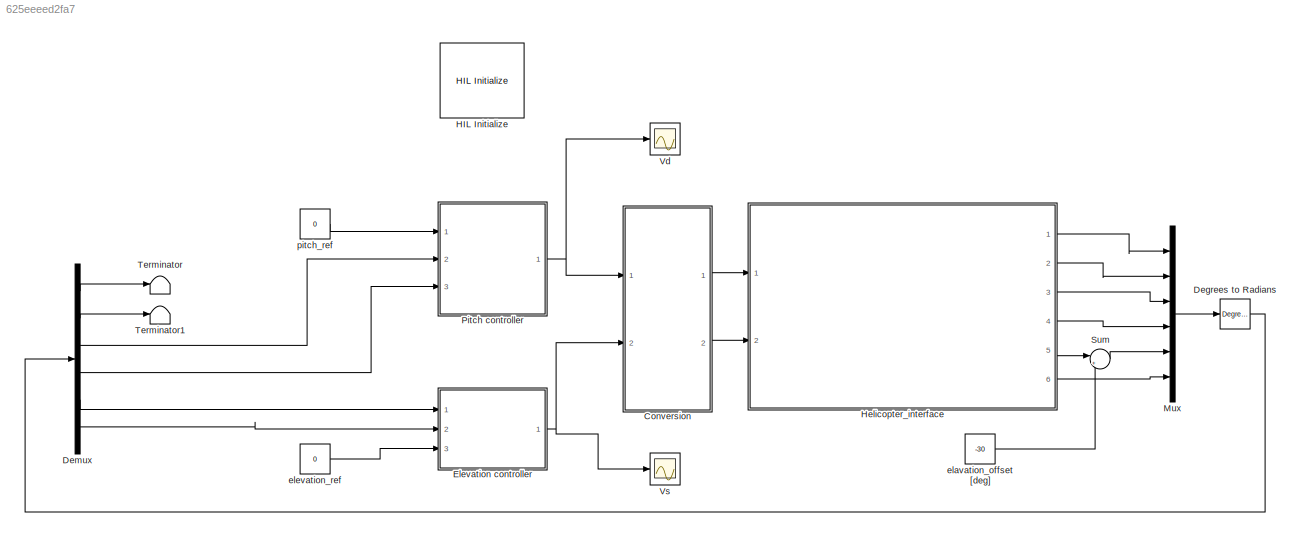
MODEL slx_625eeeed2fa7
KIND model
CONFIG PostLoadFcn = qc_set_target_type(getConfigSet(bdroot, 'QUARC Default Target Configuration'));
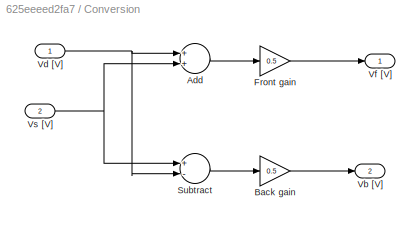
BLOCK [SubSystem] Conversion
  Ports = [2, 2]
  RequestExecContextInheritance = off
BLOCK [Sum] Conversion/Add
  InputSameDT = off
  OutDataTypeStr = Inherit: Inherit via internal rule
  Ports = [2, 1]
  SaturateOnIntegerOverflow = off
BLOCK [Gain] Conversion/Back gain
  Gain = 0.5
  OutDataTypeStr = Inherit: Inherit via internal rule
  ParamDataTypeStr = Inherit: Inherit via internal rule
  SaturateOnIntegerOverflow = off
BLOCK [Gain] Conversion/Front gain
  Gain = 0.5
  OutDataTypeStr = Inherit: Inherit via internal rule
  ParamDataTypeStr = Inherit: Inherit via internal rule
  SaturateOnIntegerOverflow = off
BLOCK [Sum] Conversion/Subtract
  InputSameDT = off
  Inputs = +-
  OutDataTypeStr = Inherit: Inherit via internal rule
  Ports = [2, 1]
  SaturateOnIntegerOverflow = off
BLOCK [Outport] Conversion/Vb [V]
  IconDisplay = Port number
  Port = 2
BLOCK [Inport] Conversion/Vd [V]
  IconDisplay = Port number
BLOCK [Outport] Conversion/Vf [V]
  IconDisplay = Port number
BLOCK [Inport] Conversion/Vs [V]
  IconDisplay = Port number
  Port = 2
BLOCK [Reference] Degrees to Radians  REF=simulink_extras/Transformations/Degrees to
Radians
  Ports = [1, 1]
  SourceBlock = simulink_extras/Transformations/Degrees to\nRadians
  SourceType = DegreesToRadians
BLOCK [Demux] Demux
  DisplayOption = bar
  Outputs = 6
  Ports = [1, 6]
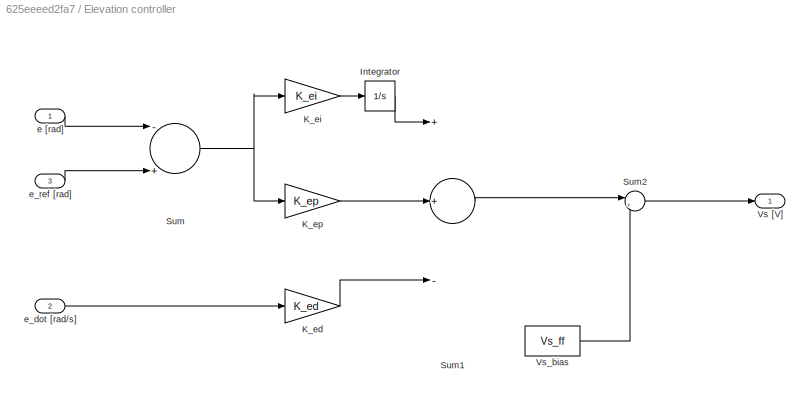
BLOCK [SubSystem] Elevation controller
  Ports = [3, 1]
  RequestExecContextInheritance = off
BLOCK [Integrator] Elevation controller/Integrator
  LimitOutput = on
  Ports = [1, 1]
BLOCK [Gain] Elevation controller/K_ed
  Gain = K_ed
BLOCK [Gain] Elevation controller/K_ei
  Gain = K_ei
BLOCK [Gain] Elevation controller/K_ep
  Gain = K_ep
BLOCK [Sum] Elevation controller/Sum
  Inputs = -+
  Ports = [2, 1]
BLOCK [Sum] Elevation controller/Sum1
  Inputs = ++-
  Ports = [3, 1]
BLOCK [Sum] Elevation controller/Sum2
  IconShape = round
  InputSameDT = off
  Inputs = |++
  OutDataTypeStr = Inherit: Inherit via internal rule
  Ports = [2, 1]
  SaturateOnIntegerOverflow = off
BLOCK [Outport] Elevation controller/Vs [V]
  IconDisplay = Port number
  InitialOutput = 0
BLOCK [Constant] Elevation controller/Vs_bias
  Value = Vs_ff
BLOCK [Inport] Elevation controller/e [rad]
  IconDisplay = Port number
BLOCK [Inport] Elevation controller/e_dot [rad//s]
  IconDisplay = Port number
  Port = 2
BLOCK [Inport] Elevation controller/e_ref [rad]
  IconDisplay = Port number
  Port = 3
BLOCK [Reference] HIL Initialize  REF=quarc_library/Data Acquisition/Generic/Configuration/HIL Initialize
  AttributesFormatString = %<object_name> (%<board_type>-%<board_number>)
  Ports = []
  Priority = -99
  SourceBlock = quarc_library/Data Acquisition/Generic/Configuration/HIL Initialize
  SourceType = HIL Initialize
  UserDataPersistent = on
  active = off
  analog_input_channels = [0:7]
  analog_input_maximums = 10
  analog_input_minimums = -10
  analog_output_channels = [0:7]
  analog_output_maximums = 10
  analog_output_minimums = -10
  board_number = 0
  board_options = update_rate=normal;decimation=1
  board_type = q8_usb
  clock_modes = []
  digital_input_channels = []
  digital_output_channels = []
  digital_output_configuration = []
  encoder_channels = [0:7]
  encoder_filter_frequency = []
  exclusive = off
  final_analog_outputs = [0]
  final_digital_outputs = [1]
  final_other_outputs = []
  final_pwm_outputs = [0]
  hardware_clocks = [0:2]
  initial_analog_outputs = [0]
  initial_clock_frequencies = []
  initial_digital_outputs = [1]
  initial_encoder_counts = [0]
  initial_other_outputs = []
  initial_pwm_outputs = [0]
  object_name = HIL-1
  other_output_channels = []
  pwm_alignment = [0]
  pwm_channels = [0:7]
  pwm_configuration = [0]
  pwm_frequency = 99.532799999999995e6/4095
  pwm_leading_deadband = [0]
  pwm_modes = 0
  pwm_polarity = [1]
  pwm_trailing_deadband = [0]
  quadrature = [4]
  set_analog_input_params_at_start = on
  set_analog_input_params_at_switch_in = off
  set_analog_output_params_at_start = on
  set_analog_output_params_at_switch_in = off
  set_analog_outputs_at_start = on
  set_analog_outputs_at_switch_in = off
  set_analog_outputs_at_switch_out = off
  set_analog_outputs_at_terminate = on
  set_analog_outputs_on_watchdog = off
  set_clock_frequencies_at_start = off
  set_clock_frequencies_at_switch_in = off
  set_clock_params_at_start = off
  set_clock_params_at_switch_in = off
  set_digital_output_params_at_start = off
  set_digital_output_params_at_switch_in = off
  set_digital_outputs_at_start = on
  set_digital_outputs_at_switch_in = off
  set_digital_outputs_at_switch_out = off
  set_digital_outputs_at_terminate = on
  set_digital_outputs_on_watchdog = off
  set_encoder_counts_at_start = on
  set_encoder_counts_at_switch_in = off
  set_encoder_params_at_start = on
  set_encoder_params_at_switch_in = off
  set_other_outputs_at_start = off
  set_other_outputs_at_switch_in = off
  set_other_outputs_at_switch_out = off
  set_other_outputs_at_terminate = off
  set_other_outputs_on_watchdog = off
  set_pwm_outputs_at_start = on
  set_pwm_outputs_at_switch_in = off
  set_pwm_outputs_at_switch_out = off
  set_pwm_outputs_at_terminate = on
  set_pwm_outputs_on_watchdog = off
  set_pwm_params_at_start = on
  set_pwm_params_at_switch_in = off
  watchdog_analog_outputs = 0
  watchdog_digital_outputs = [1]
  watchdog_other_outputs = []
  watchdog_pwm_outputs = [0]
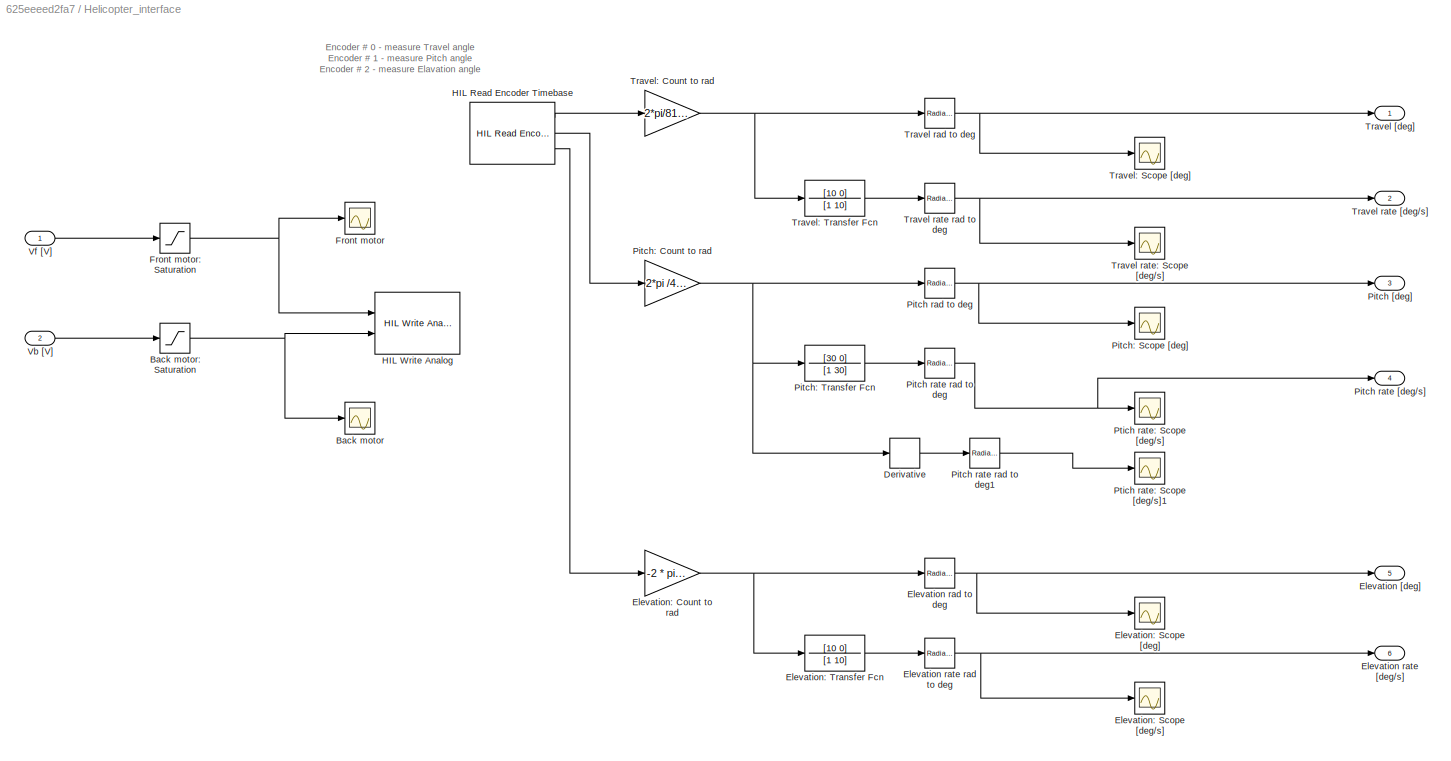
BLOCK [SubSystem] Helicopter_interface
  Ports = [2, 6]
  RequestExecContextInheritance = off
BLOCK [Scope] Helicopter_interface/Back motor
  DataFormat = StructureWithTime
  Floating = off
  NumInputPorts = 1
  Ports = [1]
  SampleTime = 0
  SaveName = ScopeData1
  ShowLegends = off
  YMax = 3.225
  YMin = 2.925
BLOCK [Saturate] Helicopter_interface/Back motor: Saturation
  InputPortMap = u0
  LowerLimit = -5
  Ports = [1, 1]
  UpperLimit = 5
BLOCK [Derivative] Helicopter_interface/Derivative
BLOCK [Outport] Helicopter_interface/Elevation [deg]
  IconDisplay = Port number
  Port = 5
BLOCK [Reference] Helicopter_interface/Elevation rad to deg  REF=simulink_extras/Transformations/Radians
to Degrees
  Ports = [1, 1]
  SourceBlock = simulink_extras/Transformations/Radians\nto Degrees
  SourceType = RadiansToDegrees
BLOCK [Outport] Helicopter_interface/Elevation rate [deg//s]
  IconDisplay = Port number
  Port = 6
BLOCK [Reference] Helicopter_interface/Elevation rate rad to deg  REF=simulink_extras/Transformations/Radians
to Degrees
  Ports = [1, 1]
  SourceBlock = simulink_extras/Transformations/Radians\nto Degrees
  SourceType = RadiansToDegrees
BLOCK [Gain] Helicopter_interface/Elevation: Count to rad
  Gain = -2 * pi /4096
  OutDataTypeStr = Inherit: Inherit via internal rule
  ParamDataTypeStr = Inherit: Inherit via internal rule
  SaturateOnIntegerOverflow = off
BLOCK [Scope] Helicopter_interface/Elevation: Scope [deg//s]
  DataFormat = StructureWithTime
  Floating = off
  NumInputPorts = 1
  Ports = [1]
  SampleTime = 0
  SaveName = ScopeData13
  ShowLegends = off
  YMax = 50
  YMin = -20
BLOCK [Scope] Helicopter_interface/Elevation: Scope [deg]
  DataFormat = StructureWithTime
  Floating = off
  NumInputPorts = 1
  Ports = [1]
  SampleTime = 0
  SaveName = ScopeData12
  ShowLegends = off
  YMax = 38
  YMin = 29
BLOCK [TransferFcn] Helicopter_interface/Elevation: Transfer Fcn
  Denominator = [1 10]
  Numerator = [10 0]
BLOCK [Scope] Helicopter_interface/Front motor
  DataFormat = StructureWithTime
  Floating = off
  NumInputPorts = 1
  Ports = [1]
  SampleTime = 0
  ShowLegends = off
  YMax = 2.925
  YMin = 2.525
BLOCK [Saturate] Helicopter_interface/Front motor: Saturation
  InputPortMap = u0
  LowerLimit = -5
  Ports = [1, 1]
  UpperLimit = 5
BLOCK [Reference] Helicopter_interface/HIL Read Encoder Timebase  REF=quarc_library/Data Acquisition/Generic/Timebases/HIL Read Encoder
Timebase
  AttributesFormatString = (%<object_name>)
  Ports = [0, 3]
  SourceBlock = quarc_library/Data Acquisition/Generic/Timebases/HIL Read Encoder\nTimebase
  SourceType = HIL Read Encoder Timebase
  UserDataPersistent = on
  active = on
  channels = [0:2]
  clock = 0
  data_type = double
  data_type_mode = Inherit via back propagation
  object_name = HIL-1
  samples_in_buffer = max(ceil(1/qc_get_step_size), 1)
  vector_output = off
BLOCK [Reference] Helicopter_interface/HIL Write Analog  REF=quarc_library/Data Acquisition/Generic/Immediate I//O/HIL Write Analog
  AttributesFormatString = (%<object_name>)
  Ports = [2]
  SourceBlock = quarc_library/Data Acquisition/Generic/Immediate I//O/HIL Write Analog
  SourceType = HIL Write Analog
  UserDataPersistent = on
  active = off
  channels = [0:1]
  object_name = HIL-1
  sample_time = -1
  vector_input = off
BLOCK [Outport] Helicopter_interface/Pitch [deg]
  IconDisplay = Port number
  Port = 3
BLOCK [Reference] Helicopter_interface/Pitch rad to deg  REF=simulink_extras/Transformations/Radians
to Degrees
  Ports = [1, 1]
  SourceBlock = simulink_extras/Transformations/Radians\nto Degrees
  SourceType = RadiansToDegrees
BLOCK [Outport] Helicopter_interface/Pitch rate [deg//s]
  IconDisplay = Port number
  Port = 4
BLOCK [Reference] Helicopter_interface/Pitch rate rad to deg  REF=simulink_extras/Transformations/Radians
to Degrees
  Ports = [1, 1]
  SourceBlock = simulink_extras/Transformations/Radians\nto Degrees
  SourceType = RadiansToDegrees
BLOCK [Reference] Helicopter_interface/Pitch rate rad to deg1  REF=simulink_extras/Transformations/Radians
to Degrees
  Ports = [1, 1]
  SourceBlock = simulink_extras/Transformations/Radians\nto Degrees
  SourceType = RadiansToDegrees
BLOCK [Gain] Helicopter_interface/Pitch: Count to rad
  Gain = 2*pi /4096
  OutDataTypeStr = Inherit: Inherit via internal rule
  ParamDataTypeStr = Inherit: Inherit via internal rule
  SaturateOnIntegerOverflow = off
BLOCK [Scope] Helicopter_interface/Pitch: Scope [deg]
  DataFormat = StructureWithTime
  Floating = off
  NumInputPorts = 1
  Ports = [1]
  SampleTime = 0
  SaveName = ScopeData10
  ShowLegends = off
  YMax = 25
  YMin = -20
BLOCK [TransferFcn] Helicopter_interface/Pitch: Transfer Fcn
  Denominator = [1 30]
  Numerator = [30 0]
BLOCK [Scope] Helicopter_interface/Ptich rate: Scope [deg//s]
  DataFormat = StructureWithTime
  Floating = off
  NumInputPorts = 1
  Ports = [1]
  SampleTime = 0
  SaveName = ScopeData11
  ShowLegends = off
  YMax = 70
  YMin = -60
BLOCK [Scope] Helicopter_interface/Ptich rate: Scope [deg//s]1
  DataFormat = StructureWithTime
  Floating = off
  NumInputPorts = 1
  Ports = [1]
  SampleTime = 0
  SaveName = ScopeData4
  ShowLegends = off
  YMax = 150
  YMin = -150
BLOCK [Outport] Helicopter_interface/Travel [deg]
  IconDisplay = Port number
BLOCK [Reference] Helicopter_interface/Travel rad to deg  REF=simulink_extras/Transformations/Radians
to Degrees
  Ports = [1, 1]
  SourceBlock = simulink_extras/Transformations/Radians\nto Degrees
  SourceType = RadiansToDegrees
BLOCK [Reference] Helicopter_interface/Travel rate  rad to deg  REF=simulink_extras/Transformations/Radians
to Degrees
  Ports = [1, 1]
  SourceBlock = simulink_extras/Transformations/Radians\nto Degrees
  SourceType = RadiansToDegrees
BLOCK [Outport] Helicopter_interface/Travel rate [deg//s]
  IconDisplay = Port number
  Port = 2
BLOCK [Scope] Helicopter_interface/Travel rate: Scope [deg//s]
  DataFormat = StructureWithTime
  Floating = off
  NumInputPorts = 1
  Ports = [1]
  SampleTime = 0
  SaveName = ScopeData9
  ShowLegends = off
  YMax = 15
  YMin = -17.5
BLOCK [Gain] Helicopter_interface/Travel: Count to rad
  Gain = 2*pi/8192
  OutDataTypeStr = Inherit: Inherit via internal rule
  ParamDataTypeStr = Inherit: Inherit via internal rule
  SaturateOnIntegerOverflow = off
BLOCK [Scope] Helicopter_interface/Travel: Scope [deg]
  DataFormat = StructureWithTime
  Floating = off
  NumInputPorts = 1
  Ports = [1]
  SampleTime = 0
  SaveName = ScopeData8
  ShowLegends = off
  YMax = -5
  YMin = -32.5
BLOCK [TransferFcn] Helicopter_interface/Travel: Transfer Fcn
  Denominator = [1 10]
  Numerator = [10 0]
BLOCK [Inport] Helicopter_interface/Vb [V]
  IconDisplay = Port number
  Port = 2
BLOCK [Inport] Helicopter_interface/Vf [V]
  IconDisplay = Port number
BLOCK [Mux] Mux
  DisplayOption = bar
  Inputs = 6
  Ports = [6, 1]
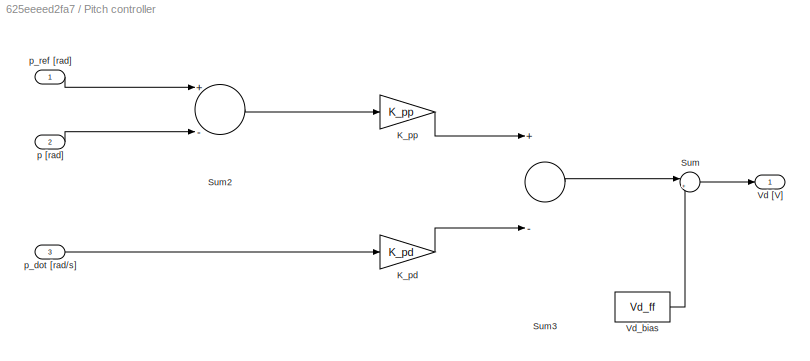
BLOCK [SubSystem] Pitch controller
  Ports = [3, 1]
  RequestExecContextInheritance = off
BLOCK [Gain] Pitch controller/K_pd
  Gain = K_pd
BLOCK [Gain] Pitch controller/K_pp
  Gain = K_pp
BLOCK [Sum] Pitch controller/Sum
  IconShape = round
  InputSameDT = off
  Inputs = |++
  OutDataTypeStr = Inherit: Inherit via internal rule
  Ports = [2, 1]
  SaturateOnIntegerOverflow = off
BLOCK [Sum] Pitch controller/Sum2
  Inputs = +-
  Ports = [2, 1]
BLOCK [Sum] Pitch controller/Sum3
  Inputs = +-
  Ports = [2, 1]
BLOCK [Outport] Pitch controller/Vd [V]
  IconDisplay = Port number
  InitialOutput = 0
BLOCK [Constant] Pitch controller/Vd_bias
  Value = Vd_ff
BLOCK [Inport] Pitch controller/p [rad]
  IconDisplay = Port number
  Port = 2
BLOCK [Inport] Pitch controller/p_dot [rad//s]
  IconDisplay = Port number
  Port = 3
BLOCK [Inport] Pitch controller/p_ref [rad]
  IconDisplay = Port number
BLOCK [Sum] Sum
  IconShape = round
  InputSameDT = off
  Inputs = |++
  OutDataTypeStr = Inherit: Inherit via internal rule
  Ports = [2, 1]
  SaturateOnIntegerOverflow = off
BLOCK [Terminator] Terminator
BLOCK [Terminator] Terminator1
BLOCK [Scope] Vd
  DataFormat = StructureWithTime
  Floating = off
  NumInputPorts = 1
  Ports = [1]
  SampleTime = 0
  SaveName = ScopeData3
  ShowLegends = off
  YMax = 1
  YMin = -2
BLOCK [Scope] Vs
  DataFormat = StructureWithTime
  Floating = off
  NumInputPorts = 1
  Ports = [1]
  SampleTime = 0
  SaveName = ScopeData2
  ShowLegends = off
  YMax = 4.975
  YMin = 4.575
BLOCK [Constant] elavation_offset [deg]
  Value = -30
BLOCK [Constant] elevation_ref
  Value = 0
BLOCK [Constant] pitch_ref
  Value = 0
ANNOTATION Helicopter_interface: Encoder # 0 - measure Travel angle Encoder # 1 - measure Pitch angle Encoder # 2 - measure Elavation angle
LINE Conversion/Add:1 -> Conversion/Front gain:1
LINE Conversion/Back gain:1 -> Conversion/Vb [V]:1
LINE Conversion/Front gain:1 -> Conversion/Vf [V]:1
LINE Conversion/Subtract:1 -> Conversion/Back gain:1
NET Conversion/Vd [V]:1 -> Conversion/Add:1, Conversion/Subtract:2
NET Conversion/Vs [V]:1 -> Conversion/Add:2, Conversion/Subtract:1
LINE Conversion:1 -> Helicopter_interface:1
LINE Conversion:2 -> Helicopter_interface:2
LINE Degrees to Radians:1 -> Demux:1
LINE Demux:1 -> Terminator:1
LINE Demux:2 -> Terminator1:1
LINE Demux:3 -> Pitch controller:2
LINE Demux:4 -> Pitch controller:3
LINE Demux:5 -> Elevation controller:1
LINE Demux:6 -> Elevation controller:2
LINE Elevation controller/Integrator:1 -> Elevation controller/Sum1:1
LINE Elevation controller/K_ed:1 -> Elevation controller/Sum1:3
LINE Elevation controller/K_ei:1 -> Elevation controller/Integrator:1
LINE Elevation controller/K_ep:1 -> Elevation controller/Sum1:2
LINE Elevation controller/Sum1:1 -> Elevation controller/Sum2:1
LINE Elevation controller/Sum2:1 -> Elevation controller/Vs [V]:1
NET Elevation controller/Sum:1 -> Elevation controller/K_ei:1, Elevation controller/K_ep:1
LINE Elevation controller/Vs_bias:1 -> Elevation controller/Sum2:2
LINE Elevation controller/e [rad]:1 -> Elevation controller/Sum:1
LINE Elevation controller/e_dot [rad//s]:1 -> Elevation controller/K_ed:1
LINE Elevation controller/e_ref [rad]:1 -> Elevation controller/Sum:2
NET Elevation controller:1 -> Conversion:2, Vs:1
NET Helicopter_interface/Back motor: Saturation:1 -> Helicopter_interface/Back motor:1, Helicopter_interface/HIL Write Analog:2
LINE Helicopter_interface/Derivative:1 -> Helicopter_interface/Pitch rate rad to deg1:1
NET Helicopter_interface/Elevation rad to deg:1 -> Helicopter_interface/Elevation [deg]:1, Helicopter_interface/Elevation: Scope [deg]:1
NET Helicopter_interface/Elevation rate rad to deg:1 -> Helicopter_interface/Elevation rate [deg//s]:1, Helicopter_interface/Elevation: Scope [deg//s]:1
NET Helicopter_interface/Elevation: Count to rad:1 -> Helicopter_interface/Elevation rad to deg:1, Helicopter_interface/Elevation: Transfer Fcn:1
LINE Helicopter_interface/Elevation: Transfer Fcn:1 -> Helicopter_interface/Elevation rate rad to deg:1
NET Helicopter_interface/Front motor: Saturation:1 -> Helicopter_interface/Front motor:1, Helicopter_interface/HIL Write Analog:1
LINE Helicopter_interface/HIL Read Encoder Timebase:1 -> Helicopter_interface/Travel: Count to rad:1
LINE Helicopter_interface/HIL Read Encoder Timebase:2 -> Helicopter_interface/Pitch: Count to rad:1
LINE Helicopter_interface/HIL Read Encoder Timebase:3 -> Helicopter_interface/Elevation: Count to rad:1
NET Helicopter_interface/Pitch rad to deg:1 -> Helicopter_interface/Pitch [deg]:1, Helicopter_interface/Pitch: Scope [deg]:1
LINE Helicopter_interface/Pitch rate rad to deg1:1 -> Helicopter_interface/Ptich rate: Scope [deg//s]1:1
NET Helicopter_interface/Pitch rate rad to deg:1 -> Helicopter_interface/Pitch rate [deg//s]:1, Helicopter_interface/Ptich rate: Scope [deg//s]:1
NET Helicopter_interface/Pitch: Count to rad:1 -> Helicopter_interface/Derivative:1, Helicopter_interface/Pitch rad to deg:1, Helicopter_interface/Pitch: Transfer Fcn:1
LINE Helicopter_interface/Pitch: Transfer Fcn:1 -> Helicopter_interface/Pitch rate rad to deg:1
NET Helicopter_interface/Travel rad to deg:1 -> Helicopter_interface/Travel [deg]:1, Helicopter_interface/Travel: Scope [deg]:1
NET Helicopter_interface/Travel rate  rad to deg:1 -> Helicopter_interface/Travel rate [deg//s]:1, Helicopter_interface/Travel rate: Scope [deg//s]:1
NET Helicopter_interface/Travel: Count to rad:1 -> Helicopter_interface/Travel rad to deg:1, Helicopter_interface/Travel: Transfer Fcn:1
LINE Helicopter_interface/Travel: Transfer Fcn:1 -> Helicopter_interface/Travel rate  rad to deg:1
LINE Helicopter_interface/Vb [V]:1 -> Helicopter_interface/Back motor: Saturation:1
LINE Helicopter_interface/Vf [V]:1 -> Helicopter_interface/Front motor: Saturation:1
LINE Helicopter_interface:1 -> Mux:1
LINE Helicopter_interface:2 -> Mux:2
LINE Helicopter_interface:3 -> Mux:3
LINE Helicopter_interface:4 -> Mux:4
LINE Helicopter_interface:5 -> Sum:1
LINE Helicopter_interface:6 -> Mux:6
LINE Mux:1 -> Degrees to Radians:1
LINE Pitch controller/K_pd:1 -> Pitch controller/Sum3:2
LINE Pitch controller/K_pp:1 -> Pitch controller/Sum3:1
LINE Pitch controller/Sum2:1 -> Pitch controller/K_pp:1
LINE Pitch controller/Sum3:1 -> Pitch controller/Sum:1
LINE Pitch controller/Sum:1 -> Pitch controller/Vd [V]:1
LINE Pitch controller/Vd_bias:1 -> Pitch controller/Sum:2
LINE Pitch controller/p [rad]:1 -> Pitch controller/Sum2:2
LINE Pitch controller/p_dot [rad//s]:1 -> Pitch controller/K_pd:1
LINE Pitch controller/p_ref [rad]:1 -> Pitch controller/Sum2:1
NET Pitch controller:1 -> Conversion:1, Vd:1
LINE Sum:1 -> Mux:5
LINE elavation_offset [deg]:1 -> Sum:2
LINE elevation_ref:1 -> Elevation controller:3
LINE pitch_ref:1 -> Pitch controller:1
note: NET lines group one-source signal fan-out (src -> all destinations, sorted); 1:1 wires keep LINE
